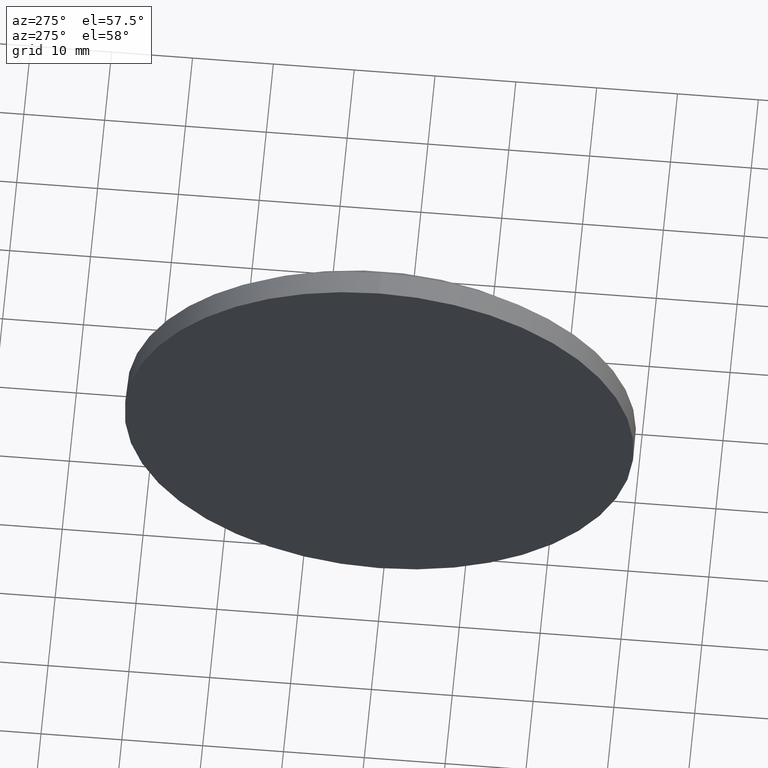
[diagram: clean part render]
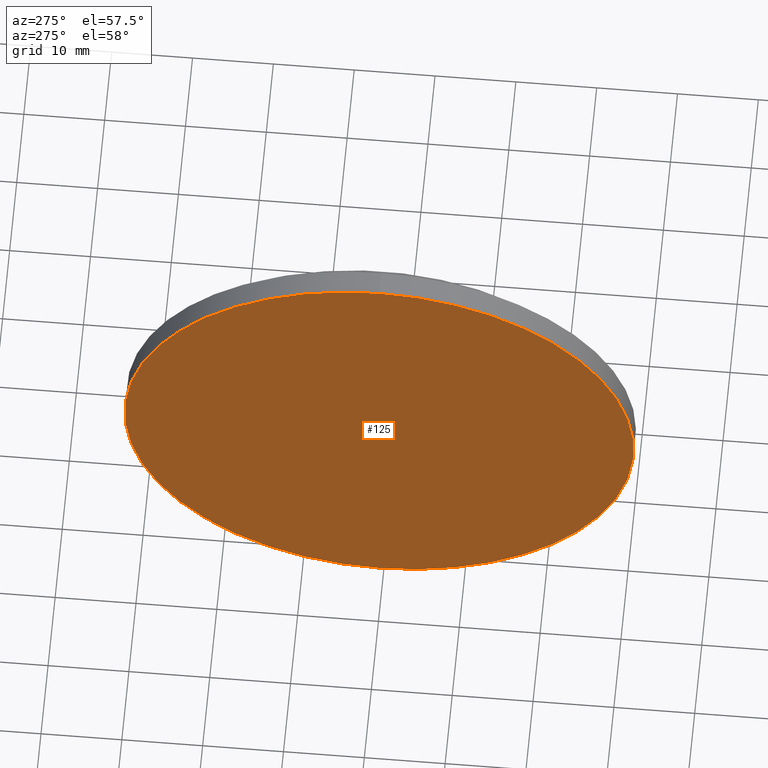
[diagram: same view with one face highlighted and labeled with its STEP entity id]
A machine part, auxiliary view. The second image highlights one B-rep face of the part: STEP entity #125.
In plain terms, the highlighted planar face has unit normal (1, 0, 0).
Its self-contained STEP definition (entity closure, byte-faithful):
#5 = EDGE_CURVE ( 'NONE', #126, #170, #175, .T. ) ;
#16 = ORIENTED_EDGE ( 'NONE', *, *, #5, .T. ) ;
#18 = DIRECTION ( 'NONE',  ( -1.000000000000000000, -0.0000000000000000000, -0.0000000000000000000 ) ) ;
#20 = EDGE_CURVE ( 'NONE', #170, #126, #147, .T. ) ;
#21 = FACE_OUTER_BOUND ( 'NONE', #110, .T. ) ;
#22 = DIRECTION ( 'NONE',  ( 1.000000000000000000, 0.0000000000000000000, 0.0000000000000000000 ) ) ;
#29 = CARTESIAN_POINT ( 'NONE',  ( 226.8933010013870400, 130.5185814569561000, -31.50000000000000000 ) ) ;
#36 = DIRECTION ( 'NONE',  ( -1.000000000000000000, -0.0000000000000000000, -0.0000000000000000000 ) ) ;
#55 = PLANE ( 'NONE',  #117 ) ;
#68 = CARTESIAN_POINT ( 'NONE',  ( 226.8933010013870400, 130.5185814569561000, 31.50000000000000000 ) ) ;
#70 = DIRECTION ( 'NONE',  ( 0.0000000000000000000, 0.0000000000000000000, -1.000000000000000000 ) ) ;
#76 = ORIENTED_EDGE ( 'NONE', *, *, #20, .T. ) ;
#78 = CARTESIAN_POINT ( 'NONE',  ( 226.8933010013870400, 130.5185814569561000, 0.0000000000000000000 ) ) ;
#91 = CARTESIAN_POINT ( 'NONE',  ( 226.8933010013870400, 130.5185814569561000, 0.0000000000000000000 ) ) ;
#105 = CARTESIAN_POINT ( 'NONE',  ( 226.8933010013870400, 130.5185814569561000, 0.0000000000000000000 ) ) ;
#110 = EDGE_LOOP ( 'NONE', ( #16, #76 ) ) ;
#117 = AXIS2_PLACEMENT_3D ( 'NONE', #105, #22, #70 ) ;
#120 = AXIS2_PLACEMENT_3D ( 'NONE', #91, #18, #180 ) ;
#125 = ADVANCED_FACE ( 'NONE', ( #21 ), #55, .F. ) ;
#126 = VERTEX_POINT ( 'NONE', #68 ) ;
#147 = CIRCLE ( 'NONE', #179, 31.50000000000000000 ) ;
#150 = DIRECTION ( 'NONE',  ( 0.0000000000000000000, 0.0000000000000000000, 1.000000000000000000 ) ) ;
#170 = VERTEX_POINT ( 'NONE', #29 ) ;
#175 = CIRCLE ( 'NONE', #120, 31.50000000000000000 ) ;
#179 = AXIS2_PLACEMENT_3D ( 'NONE', #78, #36, #150 ) ;
#180 = DIRECTION ( 'NONE',  ( 0.0000000000000000000, 0.0000000000000000000, 1.000000000000000000 ) ) ;